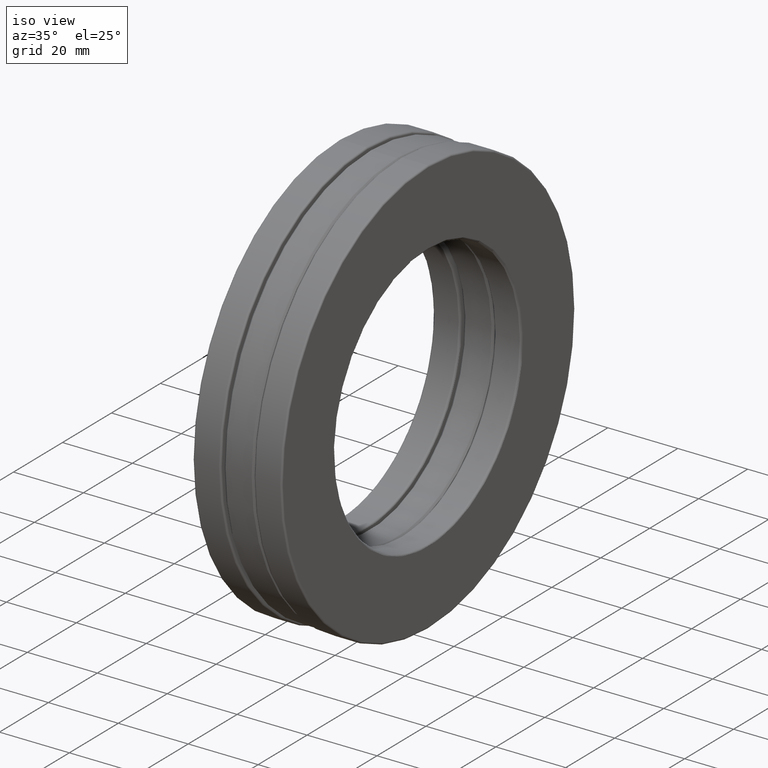
[diagram: clean part render]
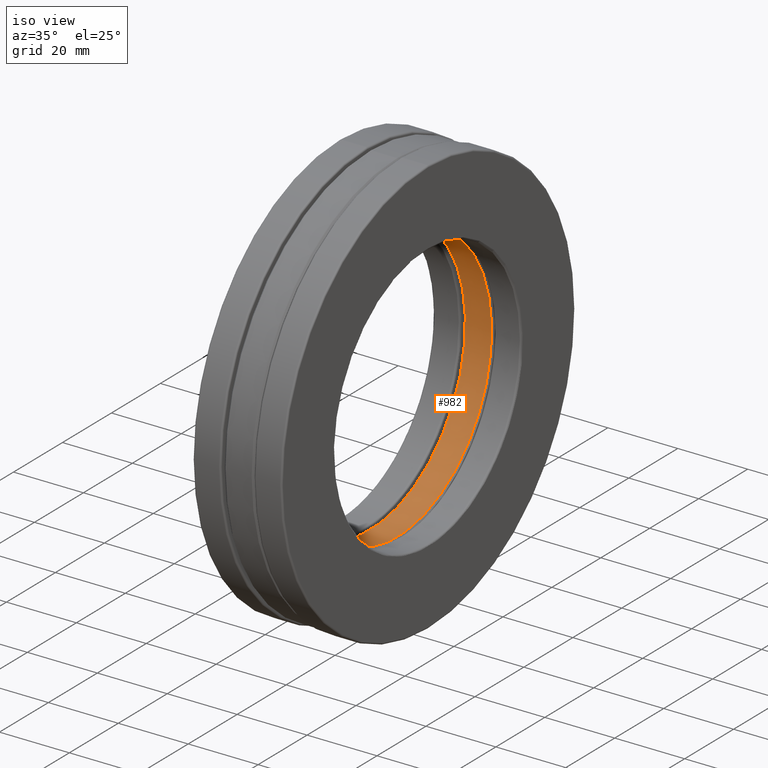
[diagram: same view with one face highlighted and labeled with its STEP entity id]
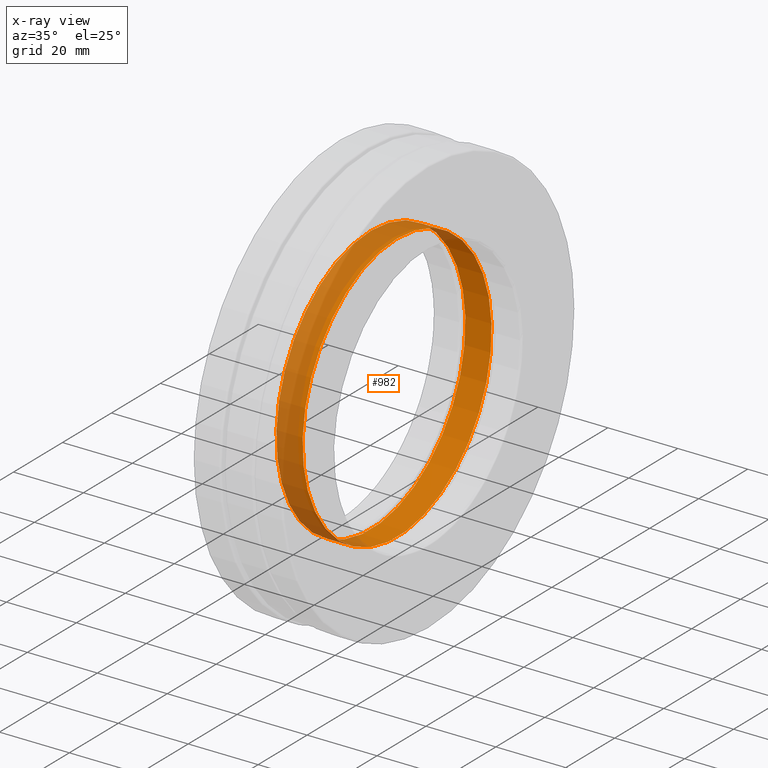
[diagram: x-ray of the same camera — body ghosted, the highlighted face saturated]
A machine part, iso view. The second image highlights one B-rep face of the part: STEP entity #982.
The next image is the same camera in x-ray: the body ghosted, the highlighted face saturated — about 44% of this face is hidden behind the body in this view.
In plain terms, the highlighted cylindrical surface (bore or boss wall) has radius 38.608 mm, axis along (-1, -0, -0).
Its self-contained STEP definition (entity closure, byte-faithful):
#85 = CARTESIAN_POINT ( 'NONE',  ( 0.1475000000000001300, 0.0000000000000000000, 0.0000000000000000000 ) ) ;
#141 = CARTESIAN_POINT ( 'NONE',  ( 0.1475000000000001300, 0.0000000000000000000, 1.520000000000000200 ) ) ;
#230 = EDGE_LOOP ( 'NONE', ( #732 ) ) ;
#254 = DIRECTION ( 'NONE',  ( -1.000000000000000000, -0.0000000000000000000, -0.0000000000000000000 ) ) ;
#271 = AXIS2_PLACEMENT_3D ( 'NONE', #1050, #1291, #1064 ) ;
#463 = AXIS2_PLACEMENT_3D ( 'NONE', #85, #1105, #529 ) ;
#482 = EDGE_LOOP ( 'NONE', ( #906 ) ) ;
#529 = DIRECTION ( 'NONE',  ( 0.0000000000000000000, 0.0000000000000000000, 1.000000000000000000 ) ) ;
#568 = AXIS2_PLACEMENT_3D ( 'NONE', #1175, #254, #1043 ) ;
#614 = VERTEX_POINT ( 'NONE', #701 ) ;
#650 = FACE_OUTER_BOUND ( 'NONE', #482, .T. ) ;
#701 = CARTESIAN_POINT ( 'NONE',  ( -0.1475000000000000200, 0.0000000000000000000, 1.520000000000000200 ) ) ;
#732 = ORIENTED_EDGE ( 'NONE', *, *, #1134, .F. ) ;
#754 = FACE_OUTER_BOUND ( 'NONE', #230, .T. ) ;
#819 = CIRCLE ( 'NONE', #463, 1.520000000000000200 ) ;
#837 = VERTEX_POINT ( 'NONE', #141 ) ;
#906 = ORIENTED_EDGE ( 'NONE', *, *, #1453, .T. ) ;
#982 = ADVANCED_FACE ( 'NONE', ( #754, #650 ), #1101, .F. ) ;
#1043 = DIRECTION ( 'NONE',  ( 0.0000000000000000000, 0.0000000000000000000, 1.000000000000000000 ) ) ;
#1050 = CARTESIAN_POINT ( 'NONE',  ( -0.1475000000000000200, 0.0000000000000000000, 0.0000000000000000000 ) ) ;
#1064 = DIRECTION ( 'NONE',  ( 0.0000000000000000000, 0.0000000000000000000, 1.000000000000000000 ) ) ;
#1101 = CYLINDRICAL_SURFACE ( 'NONE', #568, 1.520000000000000200 ) ;
#1105 = DIRECTION ( 'NONE',  ( -1.000000000000000000, -0.0000000000000000000, -0.0000000000000000000 ) ) ;
#1134 = EDGE_CURVE ( 'NONE', #837, #837, #819, .T. ) ;
#1175 = CARTESIAN_POINT ( 'NONE',  ( 0.0000000000000000000, 0.0000000000000000000, 0.0000000000000000000 ) ) ;
#1231 = CIRCLE ( 'NONE', #271, 1.520000000000000200 ) ;
#1291 = DIRECTION ( 'NONE',  ( -1.000000000000000000, -0.0000000000000000000, -0.0000000000000000000 ) ) ;
#1453 = EDGE_CURVE ( 'NONE', #614, #614, #1231, .T. ) ;